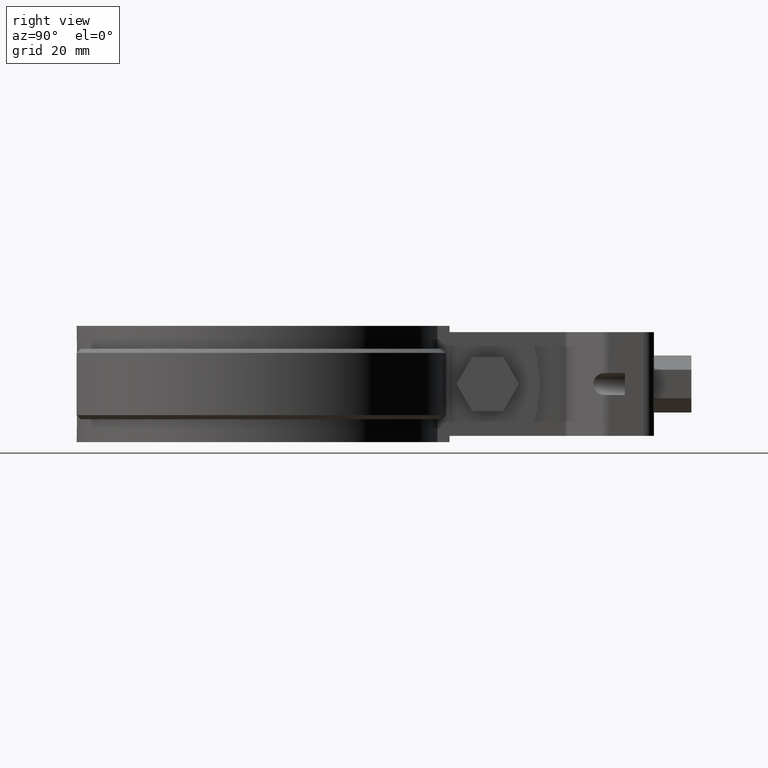
[diagram: clean part render]
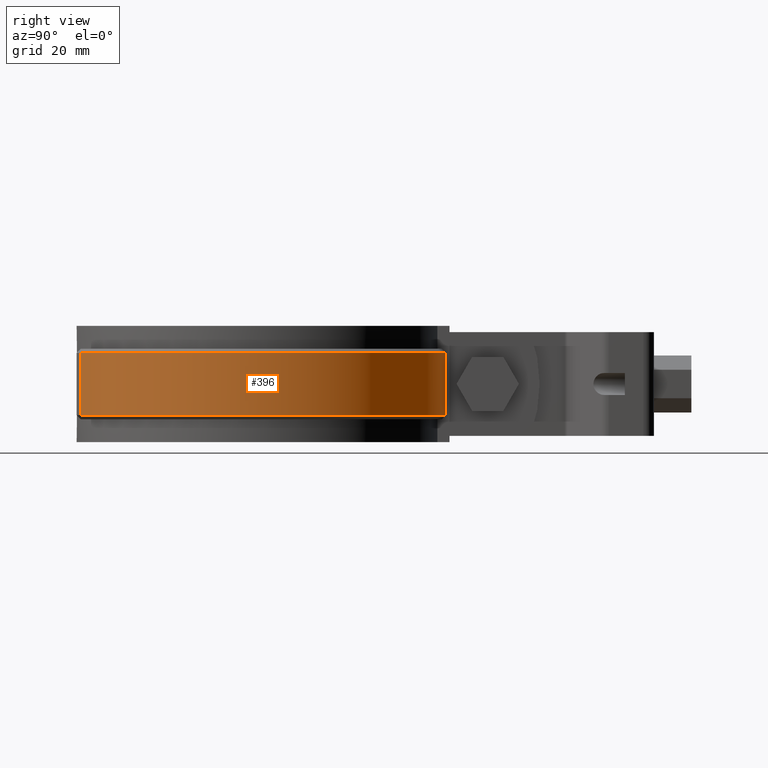
[diagram: same view with one face highlighted and labeled with its STEP entity id]
A machine part, right view. The second image highlights one B-rep face of the part: STEP entity #396.
In plain terms, the highlighted cylindrical surface (partial cylindrical patch) has radius 45.65 mm, axis along (0, 0, 1).
Its self-contained STEP definition (entity closure, byte-faithful):
#396 = ADVANCED_FACE( '', ( #699 ), #700, .T. );
#699 = FACE_OUTER_BOUND( '', #1578, .T. );
#700 = CYLINDRICAL_SURFACE( '', #1579, 45.6500000000000 );
#1578 = EDGE_LOOP( '', ( #3136, #3137, #3138, #3139 ) );
#1579 = AXIS2_PLACEMENT_3D( '', #3140, #3141, #3142 );
#3136 = ORIENTED_EDGE( '', *, *, #4496, .T. );
#3137 = ORIENTED_EDGE( '', *, *, #4517, .T. );
#3138 = ORIENTED_EDGE( '', *, *, #4549, .T. );
#3139 = ORIENTED_EDGE( '', *, *, #4502, .T. );
#3140 = CARTESIAN_POINT( '', ( 3.46944695195361E-015, 3.46944695195361E-014, 8.50000000000000 ) );
#3141 = DIRECTION( '', ( 0.000000000000000, 0.000000000000000, 1.00000000000000 ) );
#3142 = DIRECTION( '', ( -0.109529025191676, -0.993983597772398, 0.000000000000000 ) );
#4496 = EDGE_CURVE( '', #5240, #5238, #5241, .F. );
#4502 = EDGE_CURVE( '', #5250, #5240, #5251, .T. );
#4517 = EDGE_CURVE( '', #5238, #5270, #5276, .F. );
#4549 = EDGE_CURVE( '', #5270, #5250, #5331, .T. );
#5238 = VERTEX_POINT( '', #7864 );
#5240 = VERTEX_POINT( '', #7869 );
#5241 = LINE( '', #7870, #7871 );
#5250 = VERTEX_POINT( '', #7887 );
#5251 = CIRCLE( '', #7888, 45.6500000000000 );
#5270 = VERTEX_POINT( '', #7913 );
#5276 = CIRCLE( '', #7920, 45.6500000000000 );
#5331 = LINE( '', #7999, #8000 );
#7864 = CARTESIAN_POINT( '', ( 6.00000000000000, 45.2539777257204, 7.50000000000000 ) );
#7869 = CARTESIAN_POINT( '', ( 6.00000000000000, 45.2539777257204, -7.49999999999999 ) );
#7870 = CARTESIAN_POINT( '', ( 6.00000000000000, 45.2539777257204, 8.50000000000000 ) );
#7871 = VECTOR( '', #9067, 1000.00000000000 );
#7887 = CARTESIAN_POINT( '', ( 16.2200671388275, -42.6712071778140, -7.49999999999999 ) );
#7888 = AXIS2_PLACEMENT_3D( '', #9072, #9073, #9074 );
#7913 = CARTESIAN_POINT( '', ( 16.2200671388275, -42.6712071778140, 7.50000000000000 ) );
#7920 = AXIS2_PLACEMENT_3D( '', #9103, #9104, #9105 );
#7999 = CARTESIAN_POINT( '', ( 16.2200671388275, -42.6712071778140, 8.50000000000000 ) );
#8000 = VECTOR( '', #9157, 1000.00000000000 );
#9067 = DIRECTION( '', ( 0.000000000000000, 0.000000000000000, -1.00000000000000 ) );
#9072 = CARTESIAN_POINT( '', ( 3.46944695195361E-015, 3.46944695195361E-014, -7.50000000000000 ) );
#9073 = DIRECTION( '', ( 0.000000000000000, 0.000000000000000, 1.00000000000000 ) );
#9074 = DIRECTION( '', ( 1.00000000000000, 0.000000000000000, 0.000000000000000 ) );
#9103 = CARTESIAN_POINT( '', ( 3.46944695195361E-015, 3.46944695195361E-014, 7.50000000000000 ) );
#9104 = DIRECTION( '', ( 0.000000000000000, 0.000000000000000, 1.00000000000000 ) );
#9105 = DIRECTION( '', ( 1.00000000000000, 0.000000000000000, 0.000000000000000 ) );
#9157 = DIRECTION( '', ( 0.000000000000000, 0.000000000000000, -1.00000000000000 ) );